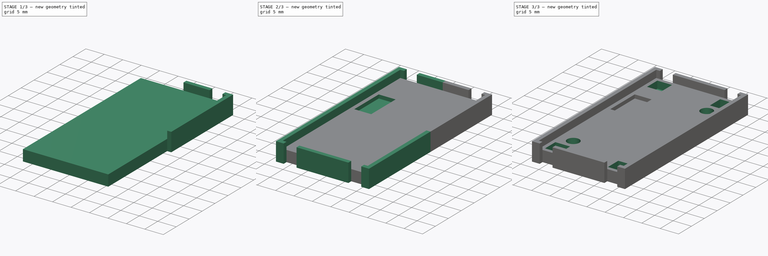
[diagram: build sequence overview — one tinted view per stage of 3, left to right]
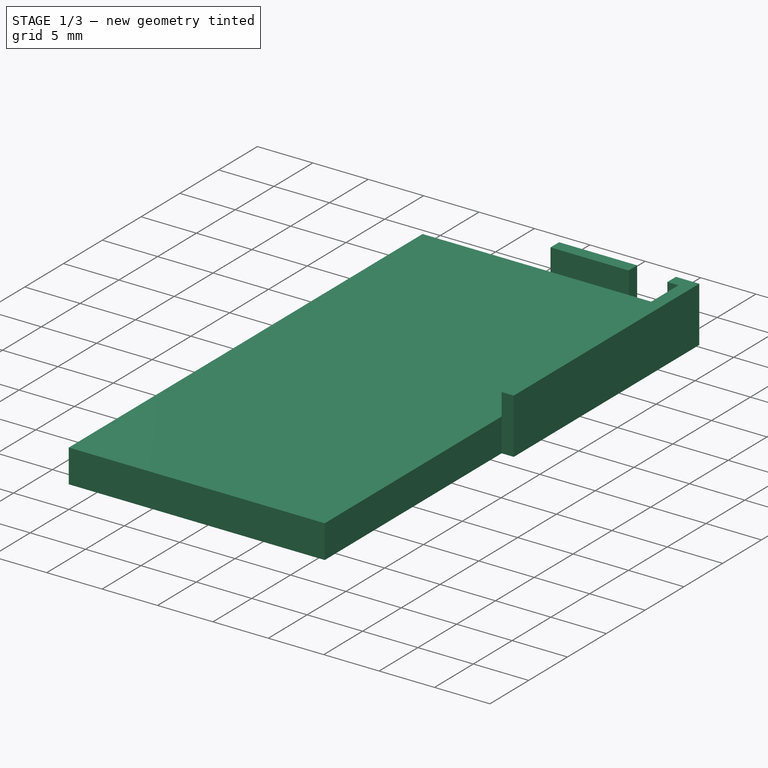
[diagram: stage 1 of 3 — iso view after this stage's code; geometry added in this stage tinted green]
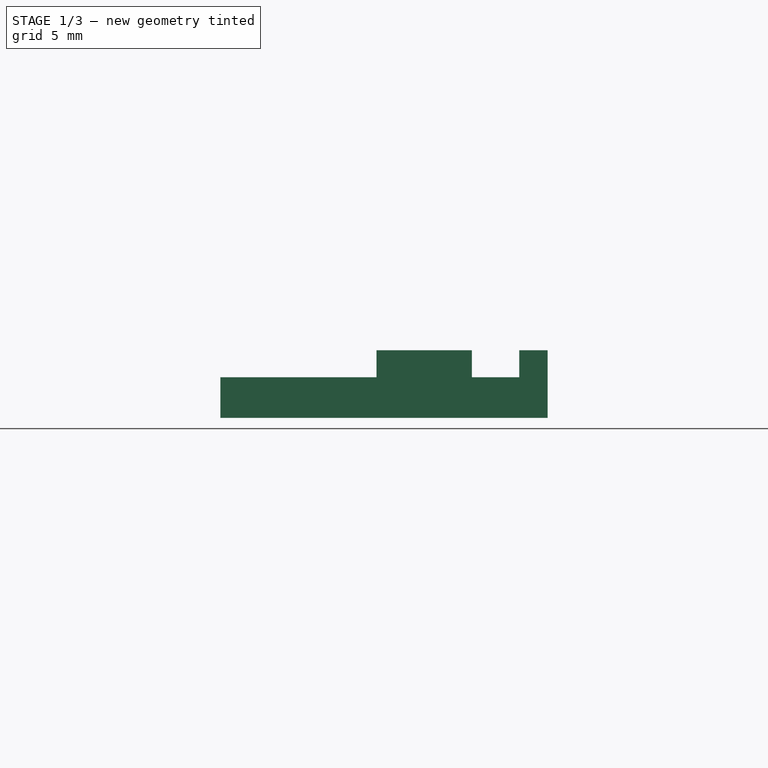
[diagram: stage 1 of 3 — front view after this stage's code; geometry added in this stage tinted green]
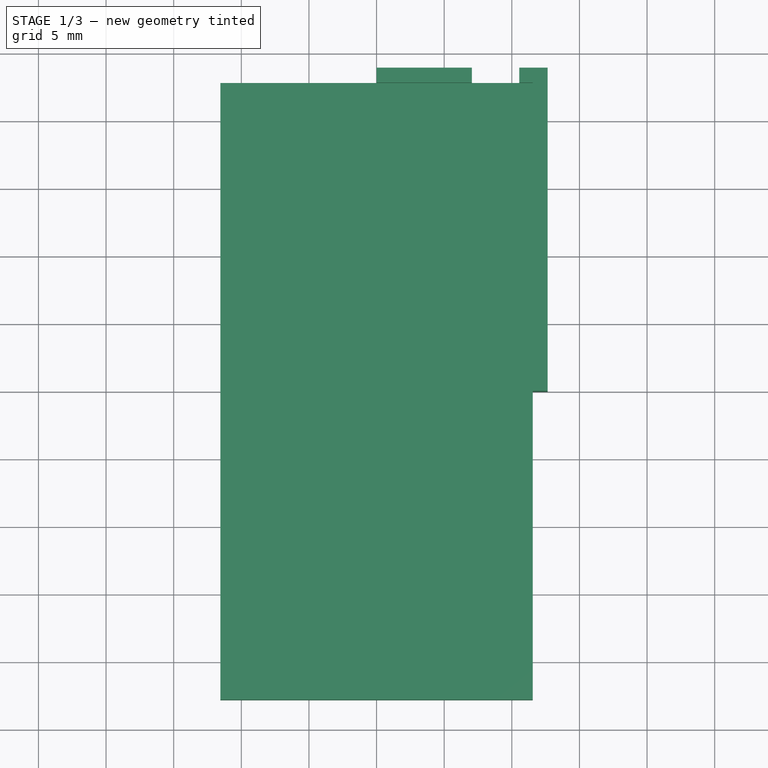
[diagram: stage 1 of 3 — top view after this stage's code; geometry added in this stage tinted green]
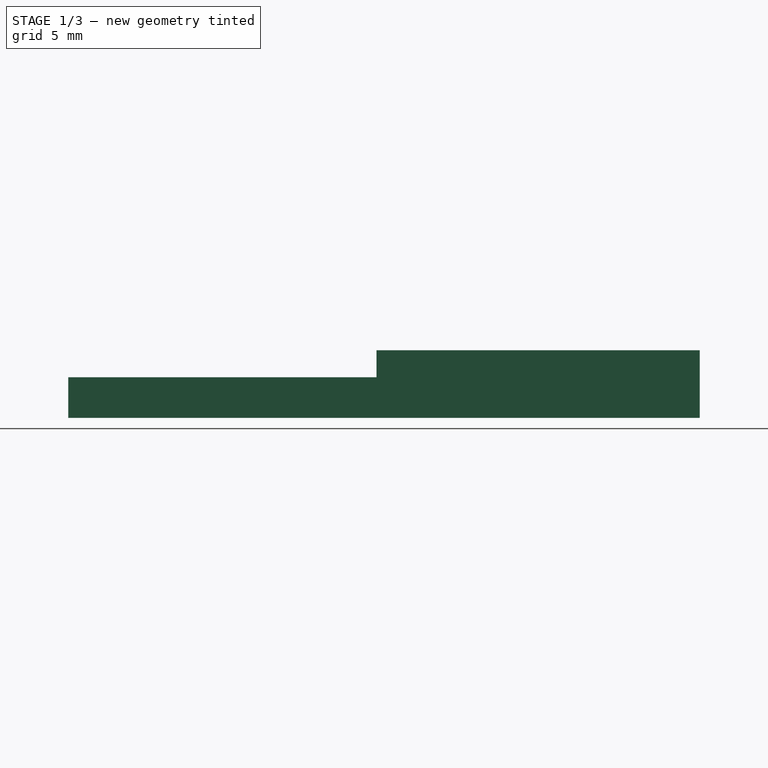
[diagram: stage 1 of 3 — right view after this stage's code; geometry added in this stage tinted green]
FCSTD DOCUMENT  (FreeCAD 0.20R29410 (Git))
Label: LM2596_casing_2
License: All rights reserved
LicenseURL: http://en.wikipedia.org/wiki/All_rights_reserved
objects: Sketcher::SketchObject×6, PartDesign::Mirrored×4, PartDesign::Pad×3, PartDesign::Pocket×3, PartDesign::MultiTransform×2, PartDesign::Body×1
note: 25 computed .brp shape members not serialized (recipe doc carries the construction recipe); baked Part::Feature solids carry a one-line shape summary decoded from their .brp

FEATURE [Sketcher::SketchObject] Sketch
  FullyConstrained = true
  MapMode = 5
  Support = -> [XY_Plane]
  sketch-geometry (5):
    g0: LineSegment StartX=-10.55 StartY=-21.8 StartZ=0 EndX=-10.55 EndY=21.8 EndZ=0
    g1: LineSegment StartX=-10.55 StartY=21.8 StartZ=0 EndX=10.55 EndY=21.8 EndZ=0
    g2: LineSegment StartX=10.55 StartY=21.8 StartZ=0 EndX=10.55 EndY=-21.8 EndZ=0
    g3: LineSegment StartX=10.55 StartY=-21.8 StartZ=0 EndX=-10.55 EndY=-21.8 EndZ=0
    g4: GeomPoint X=0 Y=0 Z=0
  constraints (12):
    c: Coincident(g0,g1)
    c: Coincident(g1,g2)
    c: Coincident(g2,g3)
    c: Coincident(g3,g0)
    c: Horizontal(g1)
    c: Horizontal(g3)
    c: Vertical(g0)
    c: Vertical(g2)
    c: Symmetric(g1,g0,g4)
    c: Coincident(g4,g-1)
    c: Distance(g1) = 21.1
    c: DistanceY(g2,g2) = 43.6
FEATURE [Sketcher::SketchObject] Sketch001
  FullyConstrained = true
  MapMode = 5
  Support = -> [XY_Plane]
  expr: Constraints[4] = (30.72 + 36.62) / 2
  sketch-geometry (3):
    g0: Circle CenterX=7.64312 CenterY=15 CenterZ=0 NormalX=0 NormalY=0 NormalZ=1 AngleXU=0 Radius=1.65
    g1: Circle CenterX=-7.64312 CenterY=-15 CenterZ=0 NormalX=0 NormalY=0 NormalZ=1 AngleXU=0 Radius=1.65
    g2: GeomPoint X=0 Y=0 Z=0
  constraints (7):
    c: Symmetric(g1,g0,g-1)
    c: Equal(g1,g0)
    c: Coincident(g2,g-1)
    c: DistanceY(g1,g0) = 30
    c: Distance(g1,g0) = 33.67
    c: Diameter(g0) = 3.3
    c: DistanceX(g1,g0) = 15.2862
FEATURE [PartDesign::Pad] Pad
  Direction = (0,0,1)
  Length = 3
  Length2 = 10
  Profile = -> Sketch
  ReferenceAxis = -> Sketch [N_Axis]
  Type = 0
FEATURE [Sketcher::SketchObject] Sketch002
  AttachmentOffset = pos=(-8.2,8.2,3) rot=(0,0,1;0rad)
  FullyConstrained = true
  MapMode = 5
  Placement = pos=(-8.2,8.2,3) rot=(0,0,1;0rad)
  Support = -> [XY_Plane]
  expr: .AttachmentOffset.Base.z = Pad.Length
  sketch-geometry (5):
    g0: LineSegment StartX=-2.3 StartY=-4.75 StartZ=0 EndX=-2.3 EndY=4.75 EndZ=0
    g1: LineSegment StartX=-2.3 StartY=4.75 StartZ=0 EndX=2.3 EndY=4.75 EndZ=0
    g2: LineSegment StartX=2.3 StartY=4.75 StartZ=0 EndX=2.3 EndY=-4.75 EndZ=0
    g3: LineSegment StartX=2.3 StartY=-4.75 StartZ=0 EndX=-2.3 EndY=-4.75 EndZ=0
    g4: GeomPoint X=0 Y=0 Z=0
  constraints (12):
    c: Coincident(g0,g1)
    c: Coincident(g1,g2)
    c: Coincident(g2,g3)
    c: Coincident(g3,g0)
    c: Horizontal(g1)
    c: Horizontal(g3)
    c: Vertical(g0)
    c: Vertical(g2)
    c: Symmetric(g1,g0,g4)
    c: Coincident(g4,g-1)
    c: DistanceY(g2,g2) = 9.5
    c: DistanceX(g3,g3) = 4.6
FEATURE [Sketcher::SketchObject] Sketch003
  AttachmentOffset = pos=(0,0,3) rot=(0,0,1;0rad)
  FullyConstrained = true
  MapMode = 5
  Placement = pos=(0,0,3) rot=(0,0,1;0rad)
  Support = -> [XY_Plane]
  expr: .AttachmentOffset.Base.z = Pad.Length
  expr: Constraints[10] = Sketch.Constraints[10]
  expr: Constraints[11] = Sketch.Constraints[11]
  sketch-geometry (9):
    g0: LineSegment StartX=-10.55 StartY=-21.8 StartZ=0 EndX=-10.55 EndY=21.8 EndZ=0
    g1: LineSegment StartX=-10.55 StartY=21.8 StartZ=0 EndX=10.55 EndY=21.8 EndZ=0
    g2: LineSegment StartX=10.55 StartY=21.8 StartZ=0 EndX=10.55 EndY=-21.8 EndZ=0
    g3: LineSegment StartX=10.55 StartY=-21.8 StartZ=0 EndX=-10.55 EndY=-21.8 EndZ=0
    g4: GeomPoint X=0 Y=0 Z=0
    g5: LineSegment StartX=10.55 StartY=21.8 StartZ=0 EndX=6.55 EndY=21.8 EndZ=0
    g6: LineSegment StartX=6.55 StartY=21.8 StartZ=0 EndX=6.55 EndY=17.8 EndZ=0
    g7: LineSegment StartX=6.55 StartY=17.8 StartZ=0 EndX=10.55 EndY=17.8 EndZ=0
    g8: LineSegment StartX=10.55 StartY=17.8 StartZ=0 EndX=10.55 EndY=21.8 EndZ=0
  constraints (23):
    c: Coincident(g0,g1)
    c: Coincident(g1,g2)
    c: Coincident(g2,g3)
    c: Coincident(g3,g0)
    c: Horizontal(g1)
    c: Horizontal(g3)
    c: Vertical(g0)
    c: Vertical(g2)
    c: Symmetric(g1,g0,g4)
    c: Coincident(g4,g-1)
    c: Distance(g1) = 21.1
    c: DistanceY(g2,g2) = 43.6
    c: Coincident(g5,g6)
    c: Coincident(g6,g7)
    c: Coincident(g7,g8)
    c: Coincident(g8,g5)
    c: Horizontal(g5)
    c: Horizontal(g7)
    c: Vertical(g6)
    c: Vertical(g8)
    c: Coincident(g5,g1)
    c: DistanceY(g8,g8) = 4
    c: Equal(g5,g8)
FEATURE [PartDesign::Mirrored] Mirrored
  MirrorPlane = -> Sketch003 [V_Axis]
FEATURE [PartDesign::Mirrored] Mirrored001
  MirrorPlane = -> Sketch003 [H_Axis]
FEATURE [Sketcher::SketchObject] Sketch004
  FullyConstrained = true
  MapMode = 5
  Support = -> [XY_Plane]
  expr: Constraints[10] = Sketch.Constraints[10]
  expr: Constraints[11] = Sketch.Constraints[11]
  sketch-geometry (10):
    g0: LineSegment StartX=-10.55 StartY=-21.8 StartZ=0 EndX=-10.55 EndY=21.8 EndZ=0
    g1: LineSegment StartX=-10.55 StartY=21.8 StartZ=0 EndX=10.55 EndY=21.8 EndZ=0
    g2: LineSegment StartX=10.55 StartY=21.8 StartZ=0 EndX=10.55 EndY=-21.8 EndZ=0
    g3: LineSegment StartX=10.55 StartY=-21.8 StartZ=0 EndX=-10.55 EndY=-21.8 EndZ=0
    g4: GeomPoint X=0 Y=0 Z=0
    g5: LineSegment StartX=-11.55 StartY=-22.8 StartZ=0 EndX=-11.55 EndY=22.8 EndZ=0
    g6: LineSegment StartX=-11.55 StartY=22.8 StartZ=0 EndX=11.55 EndY=22.8 EndZ=0
    g7: LineSegment StartX=11.55 StartY=22.8 StartZ=0 EndX=11.55 EndY=-22.8 EndZ=0
    g8: LineSegment StartX=11.55 StartY=-22.8 StartZ=0 EndX=-11.55 EndY=-22.8 EndZ=0
    g9: GeomPoint X=0 Y=0 Z=0
  constraints (24):
    c: Coincident(g0,g1)
    c: Coincident(g1,g2)
    c: Coincident(g2,g3)
    c: Coincident(g3,g0)
    c: Horizontal(g1)
    c: Horizontal(g3)
    c: Vertical(g0)
    c: Vertical(g2)
    c: Symmetric(g1,g0,g4)
    c: Coincident(g4,g-1)
    c: Distance(g1) = 21.1
    c: DistanceY(g2,g2) = 43.6
    c: Coincident(g5,g6)
    c: Coincident(g6,g7)
    c: Coincident(g7,g8)
    c: Coincident(g8,g5)
    c: Horizontal(g6)
    c: Horizontal(g8)
    c: Vertical(g5)
    c: Vertical(g7)
    c: Symmetric(g6,g5,g9)
    c: Coincident(g9,g4)
    c: DistanceY(g1,g6) = 1
    c: DistanceX(g1,g6) = 1
FEATURE [PartDesign::Pad] Pad001
  BaseFeature = -> Pad
  Direction = (0,0,1)
  Length = 3
  Length2 = 10
  Profile = -> Sketch004
  ReferenceAxis = -> Sketch004 [N_Axis]
  Type = 0
  expr: Length = Pad.Length
FEATURE [Sketcher::SketchObject] Sketch005
  FullyConstrained = true
  MapMode = 5
  Support = -> [XY_Plane]
  expr: Constraints[10] = Sketch004.Constraints[10]
  expr: Constraints[11] = Sketch004.Constraints[11]
  expr: Constraints[21] = Sketch004.Constraints[22]
  expr: Constraints[22] = Sketch004.Constraints[23]
  sketch-geometry (20):
    g0: LineSegment StartX=-10.55 StartY=-21.8 StartZ=0 EndX=-10.55 EndY=21.8 EndZ=0
    g1: LineSegment StartX=-10.55 StartY=21.8 StartZ=0 EndX=10.55 EndY=21.8 EndZ=0
    g2: LineSegment StartX=10.55 StartY=21.8 StartZ=0 EndX=10.55 EndY=-21.8 EndZ=0
    g3: LineSegment StartX=10.55 StartY=-21.8 StartZ=0 EndX=-10.55 EndY=-21.8 EndZ=0
    g4: GeomPoint X=0 Y=0 Z=0
    g5: LineSegment StartX=-11.55 StartY=-22.8 StartZ=0 EndX=-11.55 EndY=22.8 EndZ=0
    g6: LineSegment StartX=-11.55 StartY=22.8 StartZ=0 EndX=11.55 EndY=22.8 EndZ=0
    g7: LineSegment StartX=11.55 StartY=22.8 StartZ=0 EndX=11.55 EndY=-22.8 EndZ=0
    g8: LineSegment StartX=11.55 StartY=-22.8 StartZ=0 EndX=-11.55 EndY=-22.8 EndZ=0
    g9: GeomPoint X=0 Y=0 Z=0
    g10: LineSegment StartX=0 StartY=22.8 StartZ=0 EndX=7.05 EndY=22.8 EndZ=0
    g11: LineSegment StartX=7.05 StartY=22.8 StartZ=0 EndX=7.05 EndY=23.9 EndZ=0
    g12: LineSegment StartX=7.05 StartY=23.9 StartZ=0 EndX=0 EndY=23.9 EndZ=0
    g13: LineSegment StartX=0 StartY=23.9 StartZ=0 EndX=0 EndY=22.8 EndZ=0
    g14: LineSegment StartX=11.55 StartY=22.8 StartZ=0 EndX=10.55 EndY=22.8 EndZ=0
    g15: LineSegment StartX=10.55 StartY=22.8 StartZ=0 EndX=10.55 EndY=23.9 EndZ=0
    g16: LineSegment StartX=10.55 StartY=23.9 StartZ=0 EndX=12.65 EndY=23.9 EndZ=0
    g17: LineSegment StartX=12.65 StartY=23.9 StartZ=0 EndX=12.65 EndY=0 EndZ=0
    g18: LineSegment StartX=12.65 StartY=0 StartZ=0 EndX=11.55 EndY=0 EndZ=0
    g19: LineSegment StartX=11.55 StartY=0 StartZ=0 EndX=11.55 EndY=22.8 EndZ=0
  constraints (53):
    c: Coincident(g0,g1)
    c: Coincident(g1,g2)
    c: Coincident(g2,g3)
    c: Coincident(g3,g0)
    c: Horizontal(g1)
    c: Horizontal(g3)
    c: Vertical(g0)
    c: Vertical(g2)
    c: Symmetric(g1,g0,g4)
    c: Coincident(g4,g-1)
    c: Distance(g1) = 21.1
    c: DistanceY(g2,g2) = 43.6
    c: Coincident(g5,g6)
    c: Coincident(g6,g7)
    c: Coincident(g7,g8)
    c: Coincident(g8,g5)
    c: Horizontal(g8)
    c: Vertical(g5)
    c: Vertical(g7)
    c: Symmetric(g6,g5,g9)
    c: Coincident(g9,g4)
    c: DistanceY(g1,g6) = 1
    c: DistanceX(g1,g6) = 1
    c: PointOnObject(g10,g6)
    c: PointOnObject(g10,g6)
    c: Horizontal(g10)
    c: Coincident(g11,g10)
    c: Vertical(g11)
    c: Coincident(g12,g11)
    c: PointOnObject(g12,g-2)
    c: Horizontal(g12)
    c: Coincident(g13,g12)
    c: Coincident(g13,g10)
    c: Vertical(g13)
    c: Coincident(g6,g14)
    c: PointOnObject(g14,g6)
    c: Coincident(g14,g15)
    c: Vertical(g15)
    c: Coincident(g15,g16)
    c: Horizontal(g16)
    c: Coincident(g16,g17)
    c: PointOnObject(g17,g-1)
    c: Vertical(g17)
    c: Coincident(g17,g18)
    c: PointOnObject(g18,g7)
    c: Horizontal(g18)
    c: Coincident(g18,g19)
    c: Coincident(g19,g14)
    c: Horizontal(g11,g15)
    c: DistanceY(g13,g13) = 1.1
    c: Equal(g18,g13)
    c: DistanceX(g11,g15) = 3.5
    c: Vertical(g1,g14)
FEATURE [PartDesign::Pad] Pad002
  BaseFeature = -> Pad001
  Direction = (0,0,1)
  Length = 5
  Length2 = 10
  Profile = -> Sketch005
  ReferenceAxis = -> Sketch005 [N_Axis]
  Type = 0
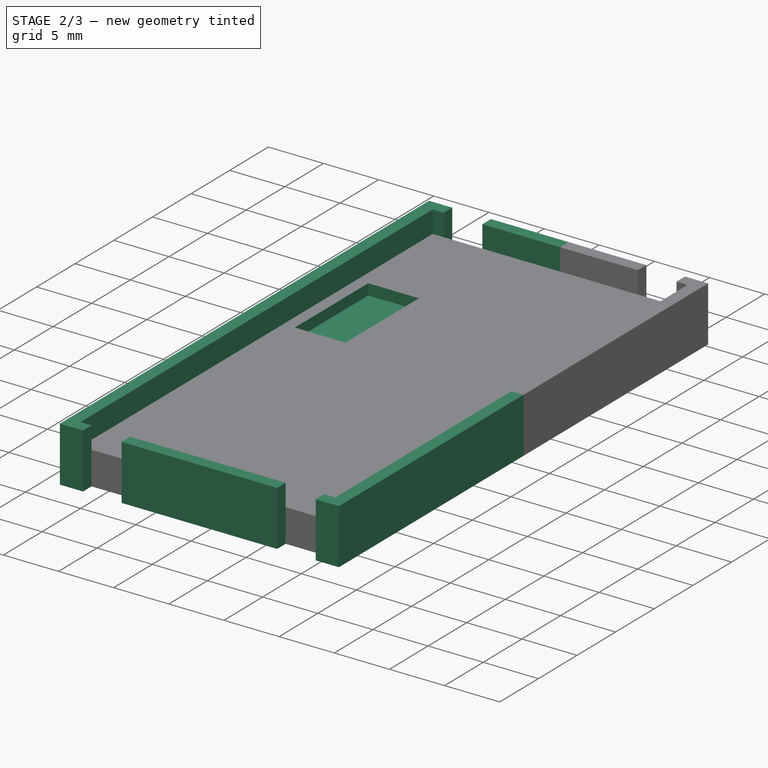
[diagram: stage 2 of 3 — iso view after this stage's code; geometry added in this stage tinted green]
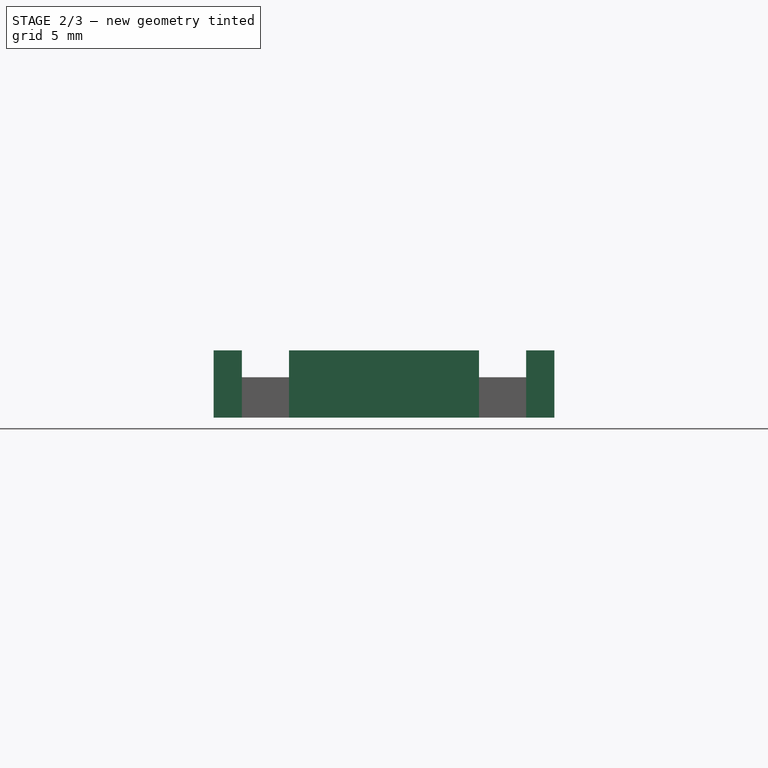
[diagram: stage 2 of 3 — front view after this stage's code; geometry added in this stage tinted green]
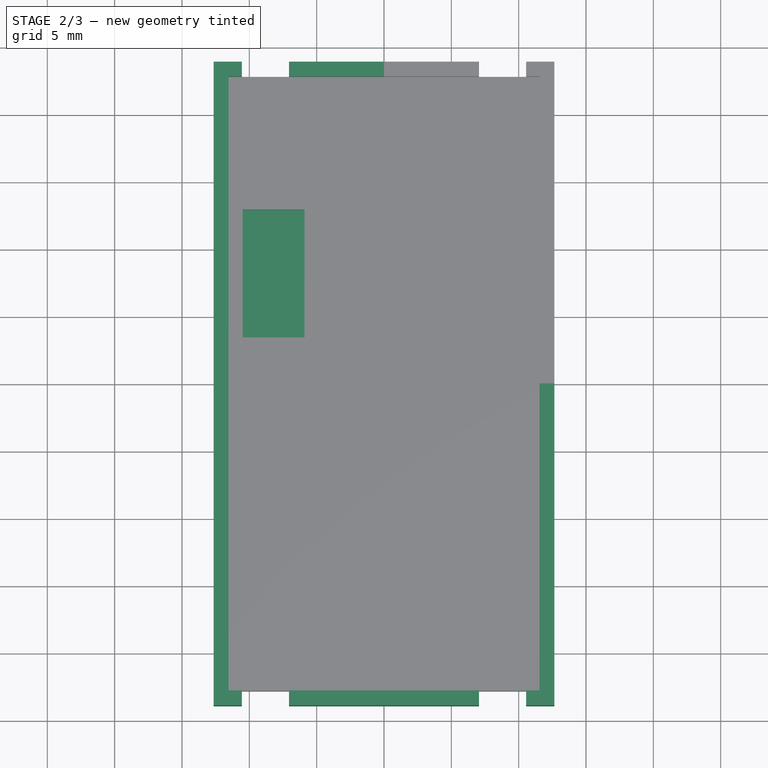
[diagram: stage 2 of 3 — top view after this stage's code; geometry added in this stage tinted green]
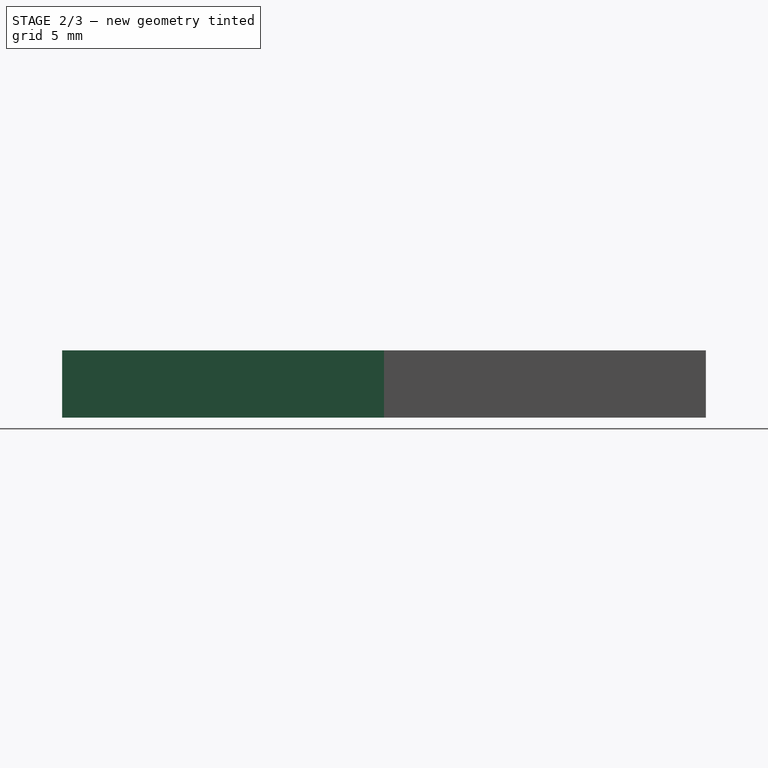
[diagram: stage 2 of 3 — right view after this stage's code; geometry added in this stage tinted green]
FEATURE [PartDesign::Mirrored] Mirrored002
  MirrorPlane = -> Sketch005 [V_Axis]
FEATURE [PartDesign::Mirrored] Mirrored003
  MirrorPlane = -> Sketch005 [H_Axis]
FEATURE [PartDesign::MultiTransform] MultiTransform001
  BaseFeature = -> Pad002
  Originals = -> [Pad002]
  Transformations = -> [Mirrored002,Mirrored003]
FEATURE [PartDesign::Pocket] Pocket
  BaseFeature = -> MultiTransform001
  Direction = (0,0,-1)
  Length = 1
  Length2 = 5
  Profile = -> Sketch002
  ReferenceAxis = -> Sketch002 [N_Axis]
  Type = 0
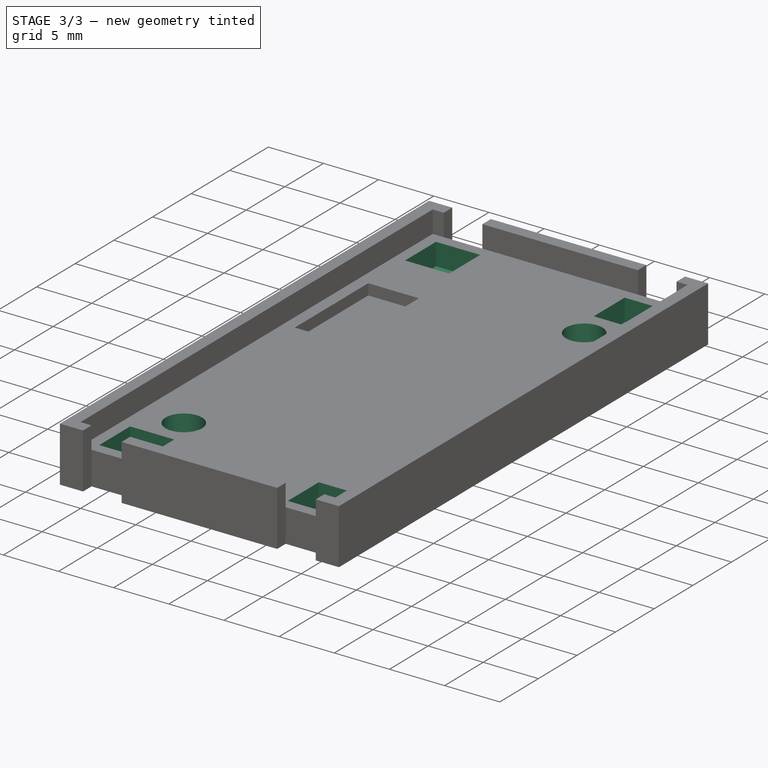
[diagram: stage 3 of 3 — iso view after this stage's code; geometry added in this stage tinted green]
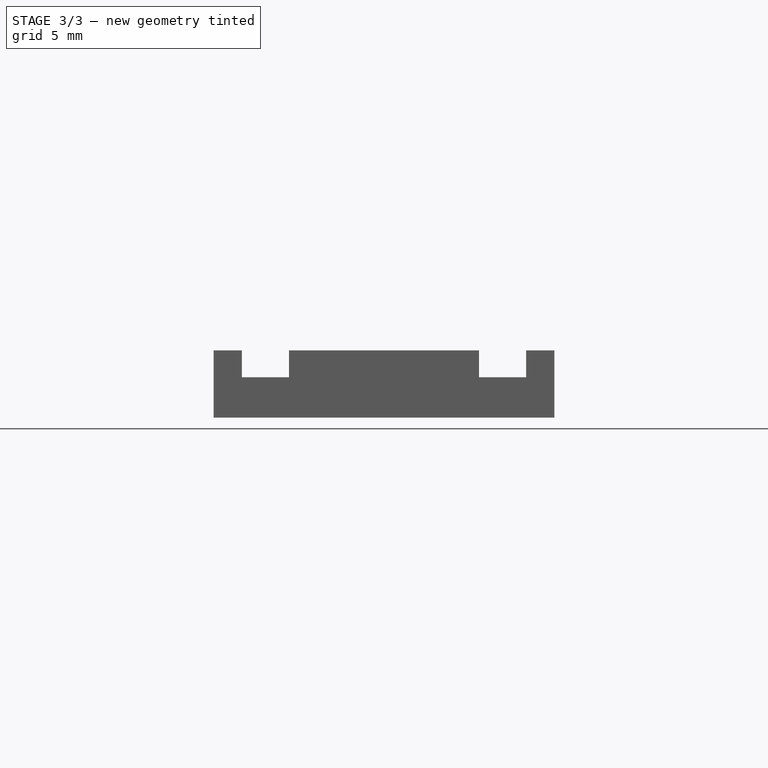
[diagram: stage 3 of 3 — front view after this stage's code; geometry added in this stage tinted green]
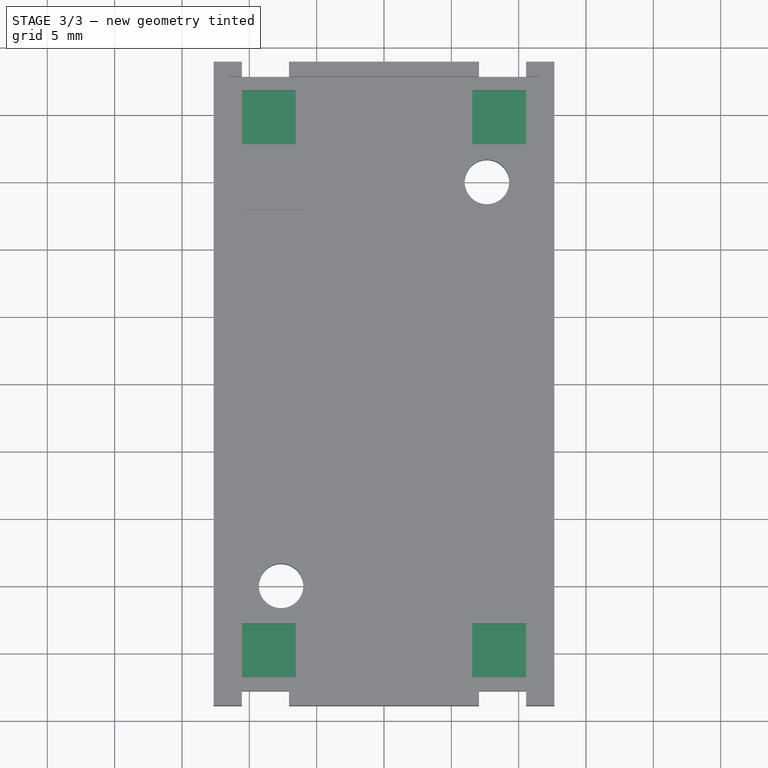
[diagram: stage 3 of 3 — top view after this stage's code; geometry added in this stage tinted green]
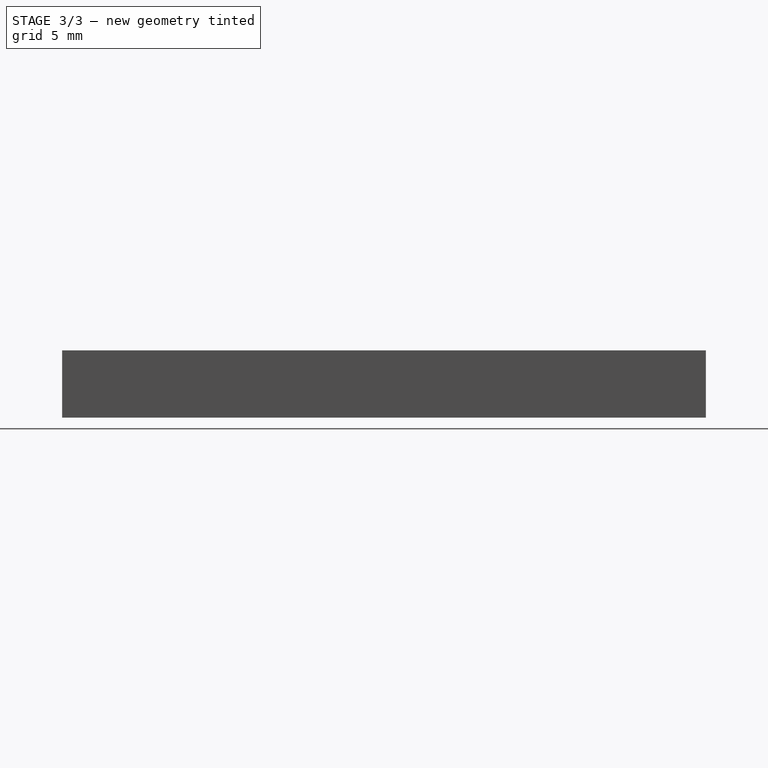
[diagram: stage 3 of 3 — right view after this stage's code; geometry added in this stage tinted green]
FEATURE [PartDesign::Pocket] Pocket001
  BaseFeature = -> Pocket
  Direction = (0,0,-1)
  Length = 5
  Length2 = 5
  Midplane = true
  Profile = -> Sketch001
  ReferenceAxis = -> Sketch001 [N_Axis]
  Type = 1
FEATURE [PartDesign::Pocket] Pocket002
  BaseFeature = -> Pocket001
  Direction = (0,0,-1)
  Length = 2
  Length2 = 5
  Profile = -> Sketch003
  ReferenceAxis = -> Sketch003 [N_Axis]
  Type = 0
FEATURE [PartDesign::MultiTransform] MultiTransform
  BaseFeature = -> Pocket002
  Originals = -> [Pocket002]
  Transformations = -> [Mirrored,Mirrored001]
FEATURE [PartDesign::Body] Body
  Group = -> [Sketch,Sketch001,Pad,Sketch002,Sketch004,Pad001,Sketch005,Pad002,MultiTransform001,Mirrored002,Mirrored003,Pocket,Pocket001,Sketch003,Pocket002,MultiTransform,Mirrored,Mirrored001]
  Origin = -> Origin
  Tip = -> MultiTransform
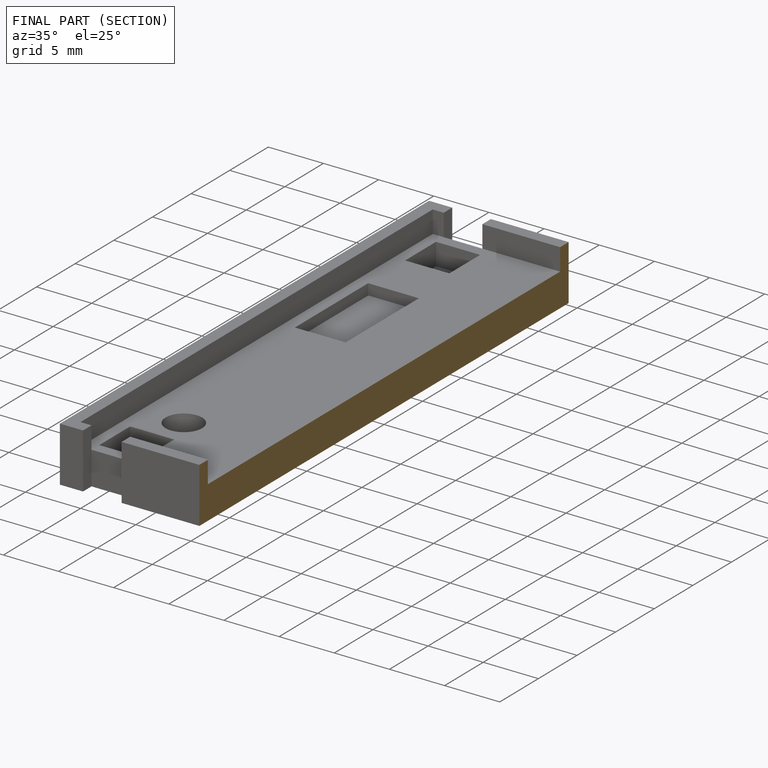
[diagram: finished part — half-section view (interior)]
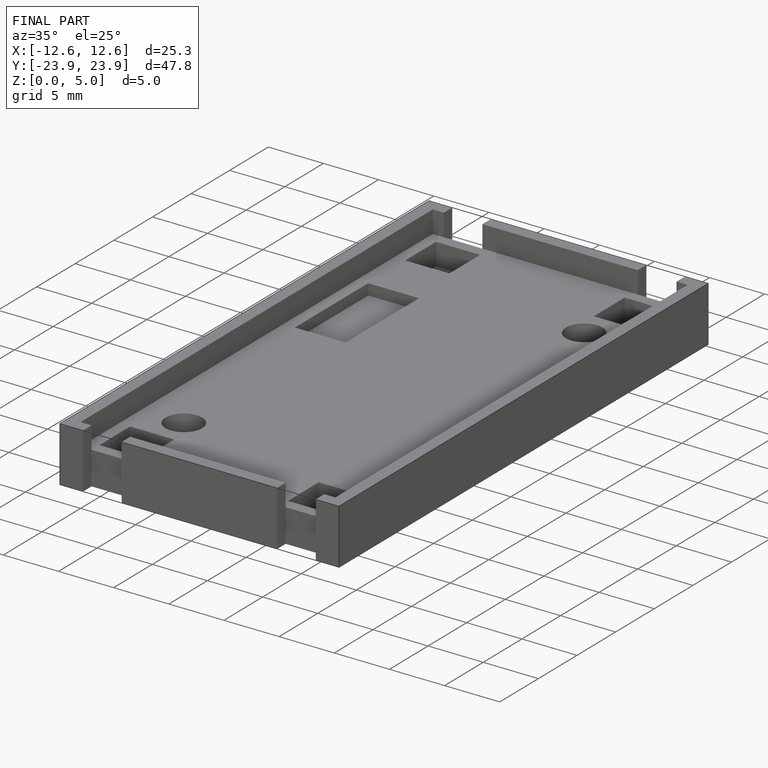
[diagram: finished part — iso view with bounding-box wireframe]
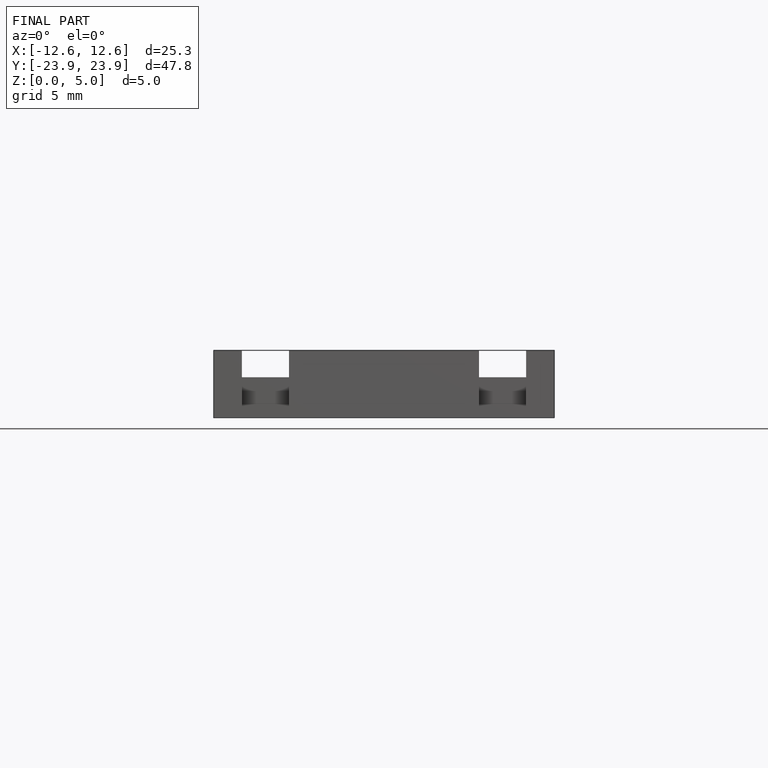
[diagram: finished part — front view with bounding-box wireframe]
